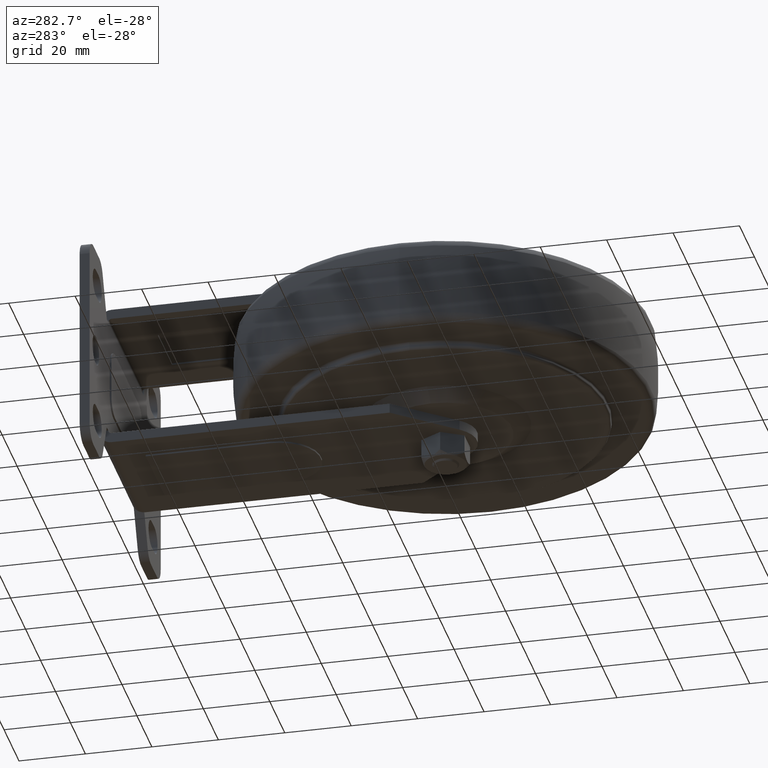
[diagram: clean part render]
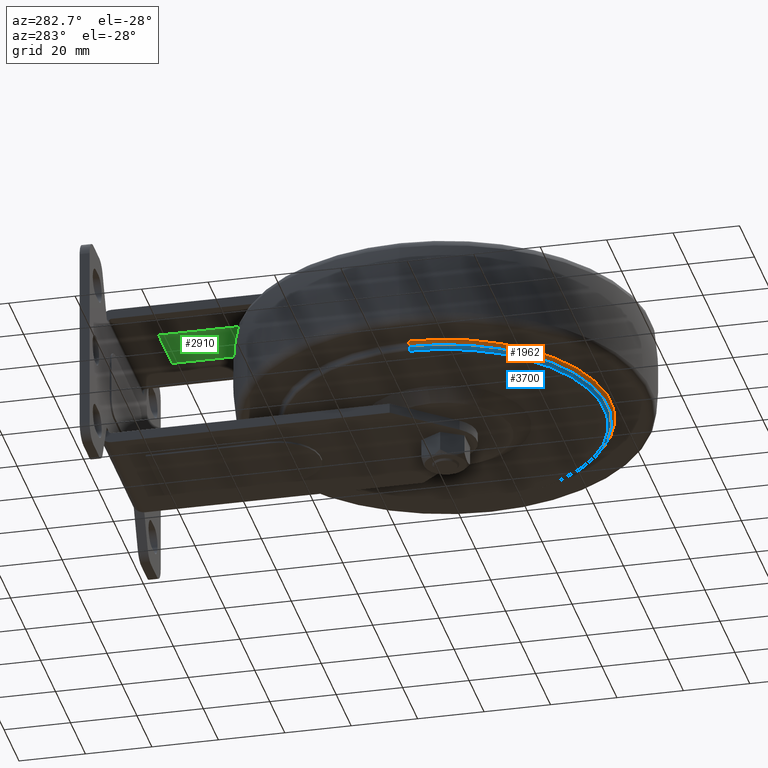
[diagram: same view with three faces highlighted in distinct colors, each labeled with its STEP entity id]
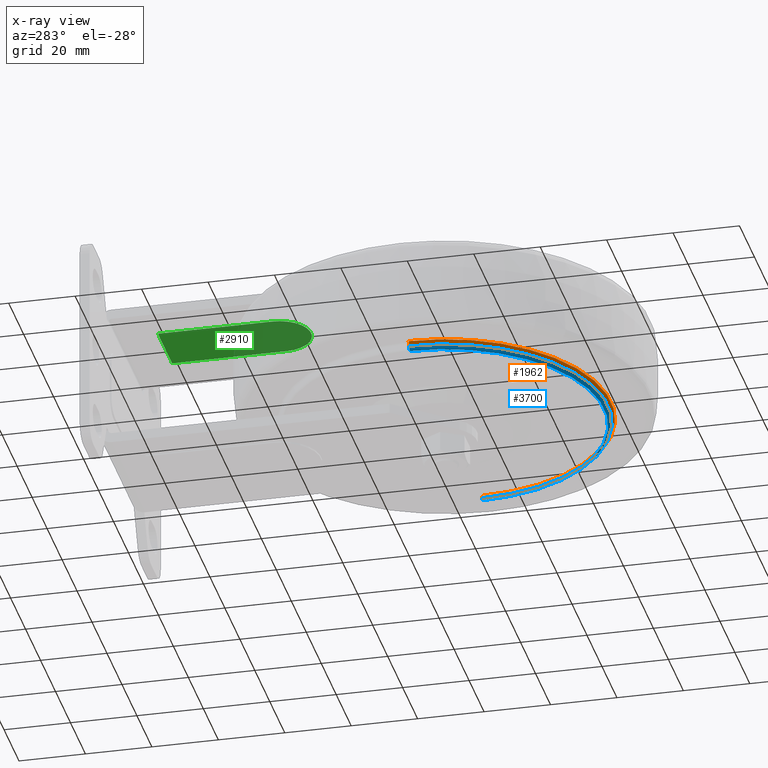
[diagram: x-ray of the same camera — body ghosted, the three highlighted faces saturated]
A machine part, auxiliary view with three faces highlighted in distinct colors.
The next image is the same camera in x-ray (body ghosted, the three faces saturated) — at least one of them is partly hidden behind the body in this view.
Their STEP definitions:

[orange] entity #1962 — the highlighted toroidal blend (fillet) surface has major radius 49.75 mm and minor (blend) radius 1 mm.
#157 = CARTESIAN_POINT ( 'NONE',  ( 0.000000000000000000, 0.000000000000000000, -14.75000000000000000 ) ) ;
#495 = CARTESIAN_POINT ( 'NONE',  ( 0.000000000000000000, 0.000000000000000000, -14.75000000000000000 ) ) ;
#507 = EDGE_CURVE ( 'NONE', #2351, #3018, #1365, .T. ) ;
#526 = ORIENTED_EDGE ( 'NONE', *, *, #1780, .F. ) ;
#636 = CARTESIAN_POINT ( 'NONE',  ( 48.75000000000000000, 5.970153145843347150E-15, -14.75000000000000000 ) ) ;
#638 = EDGE_LOOP ( 'NONE', ( #2447, #865, #1725, #526 ) ) ;
#865 = ORIENTED_EDGE ( 'NONE', *, *, #1005, .T. ) ;
#898 = DIRECTION ( 'NONE',  ( -1.000000000000000000, 0.000000000000000000, 0.000000000000000000 ) ) ;
#1005 = EDGE_CURVE ( 'NONE', #4132, #3018, #1505, .T. ) ;
#1193 = DIRECTION ( 'NONE',  ( -0.000000000000000000, -0.000000000000000000, -1.000000000000000000 ) ) ;
#1223 = DIRECTION ( 'NONE',  ( 0.000000000000000000, 0.000000000000000000, 1.000000000000000000 ) ) ;
#1251 = CARTESIAN_POINT ( 'NONE',  ( -49.75000000000000000, 0.000000000000000000, -13.74999999999999822 ) ) ;
#1308 = DIRECTION ( 'NONE',  ( -1.224646799147353207E-16, 1.000000000000000000, 0.000000000000000000 ) ) ;
#1348 = DIRECTION ( 'NONE',  ( -0.000000000000000000, -0.000000000000000000, -1.000000000000000000 ) ) ;
#1365 = CIRCLE ( 'NONE', #2860, 49.75000000000000000 ) ;
#1473 = CARTESIAN_POINT ( 'NONE',  ( -49.75000000000000000, 0.000000000000000000, -14.75000000000000000 ) ) ;
#1505 = CIRCLE ( 'NONE', #4836, 1.000000000000000888 ) ;
#1725 = ORIENTED_EDGE ( 'NONE', *, *, #507, .F. ) ;
#1780 = EDGE_CURVE ( 'NONE', #1801, #2351, #3276, .T. ) ;
#1801 = VERTEX_POINT ( 'NONE', #2748 ) ;
#1962 = ADVANCED_FACE ( 'NONE', ( #2883 ), #2562, .F. ) ;
#2015 = CARTESIAN_POINT ( 'NONE',  ( 49.75000000000000000, 6.092617825758082298E-15, -14.75000000000000000 ) ) ;
#2082 = DIRECTION ( 'NONE',  ( -1.000000000000000000, 0.000000000000000000, 0.000000000000000000 ) ) ;
#2351 = VERTEX_POINT ( 'NONE', #1251 ) ;
#2402 = AXIS2_PLACEMENT_3D ( 'NONE', #1473, #4496, #4843 ) ;
#2447 = ORIENTED_EDGE ( 'NONE', *, *, #3591, .F. ) ;
#2562 = TOROIDAL_SURFACE ( 'NONE', #4622, 49.75000000000000000, 1.000000000000000000 ) ;
#2748 = CARTESIAN_POINT ( 'NONE',  ( -48.75000000000000000, 0.000000000000000000, -14.75000000000000000 ) ) ;
#2803 = CARTESIAN_POINT ( 'NONE',  ( 0.000000000000000000, 0.000000000000000000, -13.74999999999999822 ) ) ;
#2860 = AXIS2_PLACEMENT_3D ( 'NONE', #2803, #1223, #898 ) ;
#2883 = FACE_OUTER_BOUND ( 'NONE', #638, .T. ) ;
#3018 = VERTEX_POINT ( 'NONE', #3771 ) ;
#3276 = CIRCLE ( 'NONE', #2402, 1.000000000000000888 ) ;
#3591 = EDGE_CURVE ( 'NONE', #4132, #1801, #4304, .T. ) ;
#3771 = CARTESIAN_POINT ( 'NONE',  ( 49.75000000000000000, 6.092617825758082298E-15, -13.74999999999999822 ) ) ;
#3904 = AXIS2_PLACEMENT_3D ( 'NONE', #495, #1193, #4563 ) ;
#4132 = VERTEX_POINT ( 'NONE', #636 ) ;
#4244 = DIRECTION ( 'NONE',  ( -1.000000000000000000, -1.224646799147349509E-16, 0.000000000000000000 ) ) ;
#4304 = CIRCLE ( 'NONE', #3904, 48.75000000000000000 ) ;
#4496 = DIRECTION ( 'NONE',  ( 0.000000000000000000, -1.000000000000000000, 0.000000000000000000 ) ) ;
#4563 = DIRECTION ( 'NONE',  ( -1.000000000000000000, 0.000000000000000000, 0.000000000000000000 ) ) ;
#4622 = AXIS2_PLACEMENT_3D ( 'NONE', #157, #1348, #2082 ) ;
#4836 = AXIS2_PLACEMENT_3D ( 'NONE', #2015, #1308, #4244 ) ;
#4843 = DIRECTION ( 'NONE',  ( 0.000000000000000000, 0.000000000000000000, -1.000000000000000000 ) ) ;

[blue] entity #3700 — the highlighted toroidal blend (fillet) surface has major radius 47.75 mm and minor (blend) radius 1 mm.
#44 = DIRECTION ( 'NONE',  ( -1.000000000000000000, 0.000000000000000000, 0.000000000000000000 ) ) ;
#432 = DIRECTION ( 'NONE',  ( 0.000000000000000000, 0.000000000000000000, 1.000000000000000000 ) ) ;
#474 = DIRECTION ( 'NONE',  ( -1.000000000000000000, 0.000000000000000000, 0.000000000000000000 ) ) ;
#517 = ORIENTED_EDGE ( 'NONE', *, *, #4333, .T. ) ;
#525 = CARTESIAN_POINT ( 'NONE',  ( -47.75000000000000000, 0.000000000000000000, -15.00000000000000000 ) ) ;
#679 = ORIENTED_EDGE ( 'NONE', *, *, #2903, .F. ) ;
#951 = VERTEX_POINT ( 'NONE', #1180 ) ;
#1180 = CARTESIAN_POINT ( 'NONE',  ( 48.75000000000000000, 5.970153145843347150E-15, -15.00000000000000000 ) ) ;
#1297 = AXIS2_PLACEMENT_3D ( 'NONE', #3369, #3690, #4831 ) ;
#1298 = EDGE_LOOP ( 'NONE', ( #679, #4384, #517, #3008 ) ) ;
#1651 = AXIS2_PLACEMENT_3D ( 'NONE', #525, #2411, #2033 ) ;
#1656 = CARTESIAN_POINT ( 'NONE',  ( 0.000000000000000000, 0.000000000000000000, -15.00000000000000000 ) ) ;
#1747 = CARTESIAN_POINT ( 'NONE',  ( 47.75000000000000000, 5.908920805885979576E-15, -16.00000000000000000 ) ) ;
#1834 = CARTESIAN_POINT ( 'NONE',  ( -47.75000000000000000, 0.000000000000000000, -16.00000000000000000 ) ) ;
#1836 = EDGE_CURVE ( 'NONE', #4566, #951, #3035, .T. ) ;
#1887 = CIRCLE ( 'NONE', #1651, 1.000000000000000888 ) ;
#2033 = DIRECTION ( 'NONE',  ( 0.000000000000000000, 0.000000000000000000, -1.000000000000000000 ) ) ;
#2034 = VERTEX_POINT ( 'NONE', #1834 ) ;
#2206 = CARTESIAN_POINT ( 'NONE',  ( -48.75000000000000000, 0.000000000000000000, -15.00000000000000000 ) ) ;
#2265 = CARTESIAN_POINT ( 'NONE',  ( 0.000000000000000000, 0.000000000000000000, -16.00000000000000000 ) ) ;
#2411 = DIRECTION ( 'NONE',  ( 0.000000000000000000, -1.000000000000000000, 0.000000000000000000 ) ) ;
#2525 = DIRECTION ( 'NONE',  ( -0.000000000000000000, -0.000000000000000000, -1.000000000000000000 ) ) ;
#2903 = EDGE_CURVE ( 'NONE', #951, #4872, #4061, .T. ) ;
#2923 = CIRCLE ( 'NONE', #4819, 47.75000000000000000 ) ;
#3008 = ORIENTED_EDGE ( 'NONE', *, *, #3773, .F. ) ;
#3035 = CIRCLE ( 'NONE', #3817, 48.75000000000000000 ) ;
#3126 = CARTESIAN_POINT ( 'NONE',  ( 0.000000000000000000, 0.000000000000000000, -15.00000000000000000 ) ) ;
#3369 = CARTESIAN_POINT ( 'NONE',  ( 47.75000000000000000, 5.847688465928612002E-15, -15.00000000000000000 ) ) ;
#3590 = DIRECTION ( 'NONE',  ( -1.000000000000000000, 0.000000000000000000, 0.000000000000000000 ) ) ;
#3626 = AXIS2_PLACEMENT_3D ( 'NONE', #1656, #4759, #3590 ) ;
#3690 = DIRECTION ( 'NONE',  ( -1.224646799147353207E-16, 1.000000000000000000, 0.000000000000000000 ) ) ;
#3700 = ADVANCED_FACE ( 'NONE', ( #4686 ), #4544, .T. ) ;
#3773 = EDGE_CURVE ( 'NONE', #4872, #2034, #2923, .T. ) ;
#3817 = AXIS2_PLACEMENT_3D ( 'NONE', #3126, #432, #474 ) ;
#4061 = CIRCLE ( 'NONE', #1297, 1.000000000000000888 ) ;
#4333 = EDGE_CURVE ( 'NONE', #4566, #2034, #1887, .T. ) ;
#4384 = ORIENTED_EDGE ( 'NONE', *, *, #1836, .F. ) ;
#4544 = TOROIDAL_SURFACE ( 'NONE', #3626, 47.75000000000000000, 1.000000000000000000 ) ;
#4566 = VERTEX_POINT ( 'NONE', #2206 ) ;
#4686 = FACE_OUTER_BOUND ( 'NONE', #1298, .T. ) ;
#4759 = DIRECTION ( 'NONE',  ( -0.000000000000000000, -0.000000000000000000, -1.000000000000000000 ) ) ;
#4819 = AXIS2_PLACEMENT_3D ( 'NONE', #2265, #2525, #44 ) ;
#4831 = DIRECTION ( 'NONE',  ( -1.000000000000000000, -1.224646799147349509E-16, 0.000000000000000000 ) ) ;
#4872 = VERTEX_POINT ( 'NONE', #1747 ) ;

[green] entity #2910 — the highlighted planar face has unit normal (0, 0, 1).
#212 = EDGE_CURVE ( 'NONE', #4884, #994, #4816, .T. ) ;
#217 = DIRECTION ( 'NONE',  ( 2.312964634635742464E-16, -1.000000000000000000, 0.000000000000000000 ) ) ;
#336 = ORIENTED_EDGE ( 'NONE', *, *, #786, .F. ) ;
#411 = AXIS2_PLACEMENT_3D ( 'NONE', #2191, #3633, #4430 ) ;
#590 = ORIENTED_EDGE ( 'NONE', *, *, #212, .F. ) ;
#786 = EDGE_CURVE ( 'NONE', #994, #2570, #3409, .T. ) ;
#994 = VERTEX_POINT ( 'NONE', #3522 ) ;
#1285 = CARTESIAN_POINT ( 'NONE',  ( -9.499999999999964473, 84.50000000000000000, 19.50000000000001066 ) ) ;
#1357 = LINE ( 'NONE', #2091, #3780 ) ;
#1437 = PLANE ( 'NONE',  #1455 ) ;
#1455 = AXIS2_PLACEMENT_3D ( 'NONE', #4466, #1831, #2948 ) ;
#1500 = EDGE_LOOP ( 'NONE', ( #590, #2468, #2545, #336 ) ) ;
#1749 = VECTOR ( 'NONE', #217, 1000.000000000000000 ) ;
#1831 = DIRECTION ( 'NONE',  ( 0.000000000000000000, 0.000000000000000000, 1.000000000000000000 ) ) ;
#2091 = CARTESIAN_POINT ( 'NONE',  ( 9.500000000000042633, 50.00000000000000000, 19.50000000000001066 ) ) ;
#2122 = VECTOR ( 'NONE', #2587, 1000.000000000000000 ) ;
#2191 = CARTESIAN_POINT ( 'NONE',  ( 4.362370370628073399E-14, 50.00000000000000000, 19.50000000000001066 ) ) ;
#2394 = VERTEX_POINT ( 'NONE', #3898 ) ;
#2468 = ORIENTED_EDGE ( 'NONE', *, *, #4232, .F. ) ;
#2545 = ORIENTED_EDGE ( 'NONE', *, *, #4046, .F. ) ;
#2563 = CARTESIAN_POINT ( 'NONE',  ( -9.499999999999955591, 50.00000000000000000, 19.50000000000001066 ) ) ;
#2570 = VERTEX_POINT ( 'NONE', #4732 ) ;
#2587 = DIRECTION ( 'NONE',  ( -1.000000000000000000, 0.000000000000000000, 0.000000000000000000 ) ) ;
#2910 = ADVANCED_FACE ( 'NONE', ( #3413 ), #1437, .F. ) ;
#2948 = DIRECTION ( 'NONE',  ( 1.000000000000000000, 0.000000000000000000, -0.000000000000000000 ) ) ;
#3237 = DIRECTION ( 'NONE',  ( -2.312964634635742464E-16, 1.000000000000000000, 0.000000000000000000 ) ) ;
#3409 = CIRCLE ( 'NONE', #411, 9.500000000000001776 ) ;
#3413 = FACE_OUTER_BOUND ( 'NONE', #1500, .T. ) ;
#3522 = CARTESIAN_POINT ( 'NONE',  ( -9.499999999999957367, 50.00000000000000000, 19.50000000000001066 ) ) ;
#3633 = DIRECTION ( 'NONE',  ( 0.000000000000000000, 0.000000000000000000, 1.000000000000000000 ) ) ;
#3780 = VECTOR ( 'NONE', #3237, 1000.000000000000000 ) ;
#3898 = CARTESIAN_POINT ( 'NONE',  ( 9.500000000000033751, 84.50000000000000000, 19.50000000000001066 ) ) ;
#4046 = EDGE_CURVE ( 'NONE', #2570, #2394, #1357, .T. ) ;
#4076 = CARTESIAN_POINT ( 'NONE',  ( 12.50000000000003553, 84.50000000000000000, 19.50000000000001066 ) ) ;
#4232 = EDGE_CURVE ( 'NONE', #2394, #4884, #4524, .T. ) ;
#4430 = DIRECTION ( 'NONE',  ( 1.000000000000000000, 0.000000000000000000, 0.000000000000000000 ) ) ;
#4466 = CARTESIAN_POINT ( 'NONE',  ( 4.362370370628073399E-14, 50.00000000000000000, 19.50000000000001066 ) ) ;
#4524 = LINE ( 'NONE', #4076, #2122 ) ;
#4732 = CARTESIAN_POINT ( 'NONE',  ( 9.500000000000042633, 50.00000000000000000, 19.50000000000001066 ) ) ;
#4816 = LINE ( 'NONE', #2563, #1749 ) ;
#4884 = VERTEX_POINT ( 'NONE', #1285 ) ;